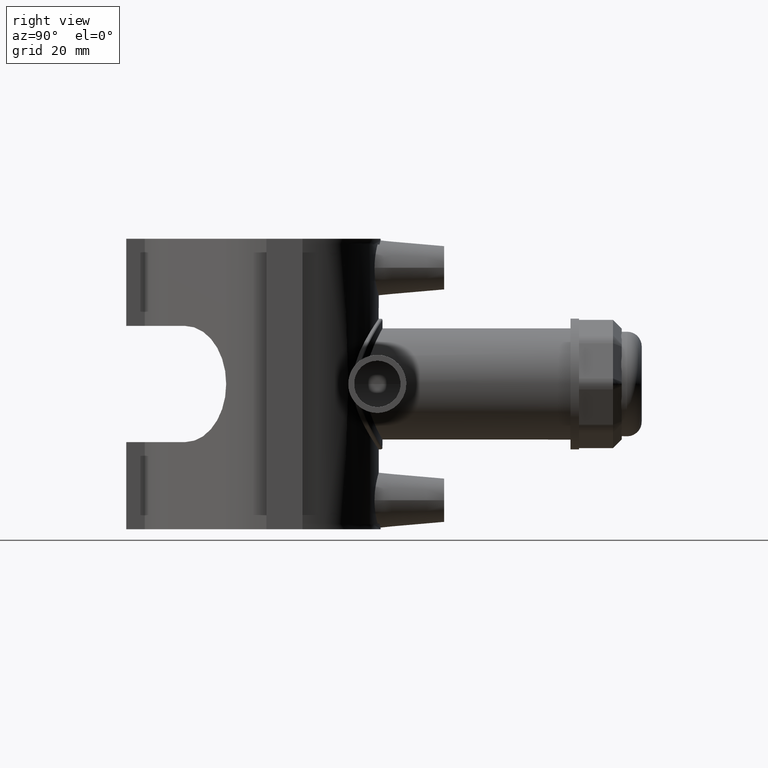
[diagram: clean part render]
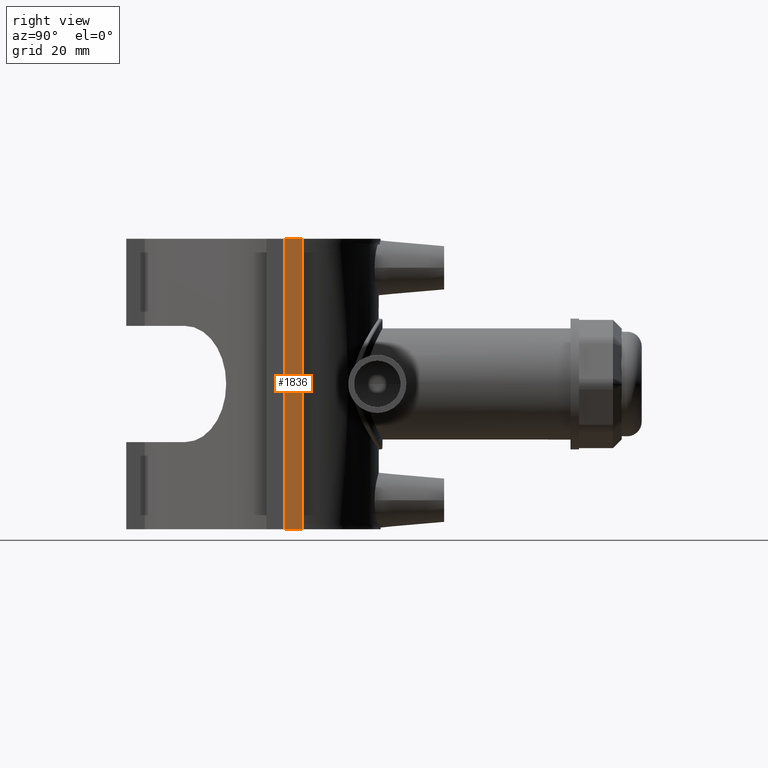
[diagram: same view with one face highlighted and labeled with its STEP entity id]
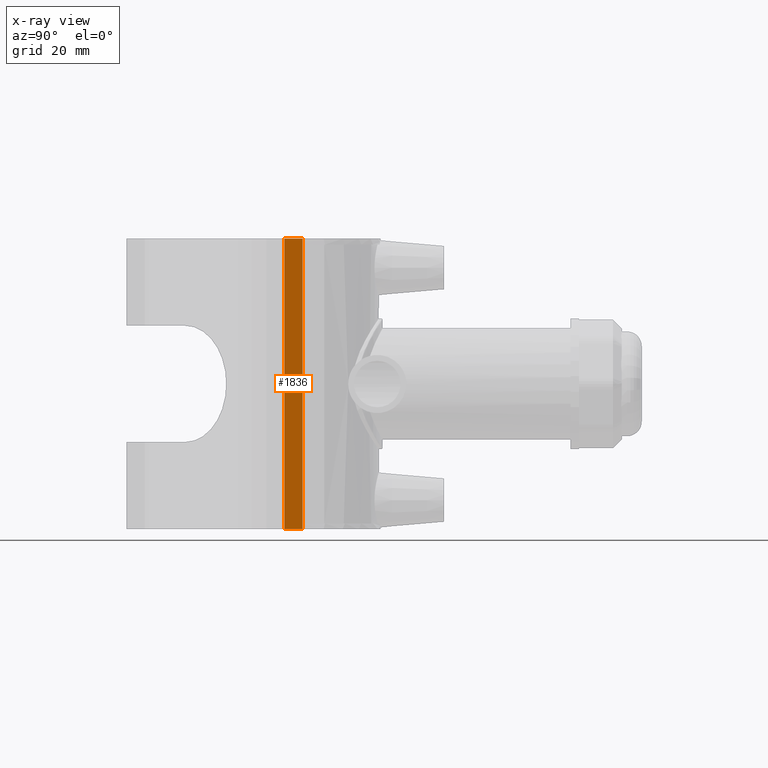
[diagram: x-ray of the same camera — body ghosted, the highlighted face saturated]
A machine part, right view. The second image highlights one B-rep face of the part: STEP entity #1836.
The next image is the same camera in x-ray: the body ghosted, the highlighted face saturated — about 0% of this face is hidden behind the body in this view.
In plain terms, the highlighted planar face has unit normal (1, 0, 0).
Its self-contained STEP definition (entity closure, byte-faithful):
#104=LINE('',#3361,#248);
#118=LINE('',#3518,#262);
#120=LINE('',#3521,#264);
#123=LINE('',#3527,#267);
#248=VECTOR('',#2371,100.);
#262=VECTOR('',#2451,100.);
#264=VECTOR('',#2455,6.19999999999999);
#267=VECTOR('',#2464,6.19999999999999);
#493=FACE_OUTER_BOUND('',#628,.T.);
#628=EDGE_LOOP('',(#1544,#1545,#1546,#1547));
#834=VERTEX_POINT('',#3358);
#835=VERTEX_POINT('',#3360);
#863=VERTEX_POINT('',#3515);
#864=VERTEX_POINT('',#3517);
#1057=EDGE_CURVE('',#835,#834,#104,.T.);
#1093=EDGE_CURVE('',#864,#863,#118,.T.);
#1095=EDGE_CURVE('',#864,#834,#120,.T.);
#1100=EDGE_CURVE('',#835,#863,#123,.T.);
#1544=ORIENTED_EDGE('',*,*,#1093,.T.);
#1545=ORIENTED_EDGE('',*,*,#1100,.F.);
#1546=ORIENTED_EDGE('',*,*,#1057,.T.);
#1547=ORIENTED_EDGE('',*,*,#1095,.F.);
#1732=PLANE('',#2021);
#1836=ADVANCED_FACE('',(#493),#1732,.T.);
#2021=AXIS2_PLACEMENT_3D('',#3530,#2469,#2470);
#2371=DIRECTION('',(0.,0.,1.));
#2451=DIRECTION('',(0.,0.,-1.));
#2455=DIRECTION('',(0.,1.,0.));
#2464=DIRECTION('',(0.,-1.,0.));
#2469=DIRECTION('center_axis',(1.,0.,0.));
#2470=DIRECTION('ref_axis',(0.,1.,0.));
#3358=CARTESIAN_POINT('',(38.,6.25,50.));
#3360=CARTESIAN_POINT('',(38.,6.25,-50.));
#3361=CARTESIAN_POINT('',(38.,6.25,0.));
#3515=CARTESIAN_POINT('',(38.,0.0500000000000078,-50.));
#3517=CARTESIAN_POINT('',(38.,0.0500000000000078,50.));
#3518=CARTESIAN_POINT('',(38.,0.0500000000000078,-25.));
#3521=CARTESIAN_POINT('',(38.,-6.25,50.));
#3527=CARTESIAN_POINT('',(38.,-6.25,-50.));
#3530=CARTESIAN_POINT('Origin',(38.,-6.25,0.));